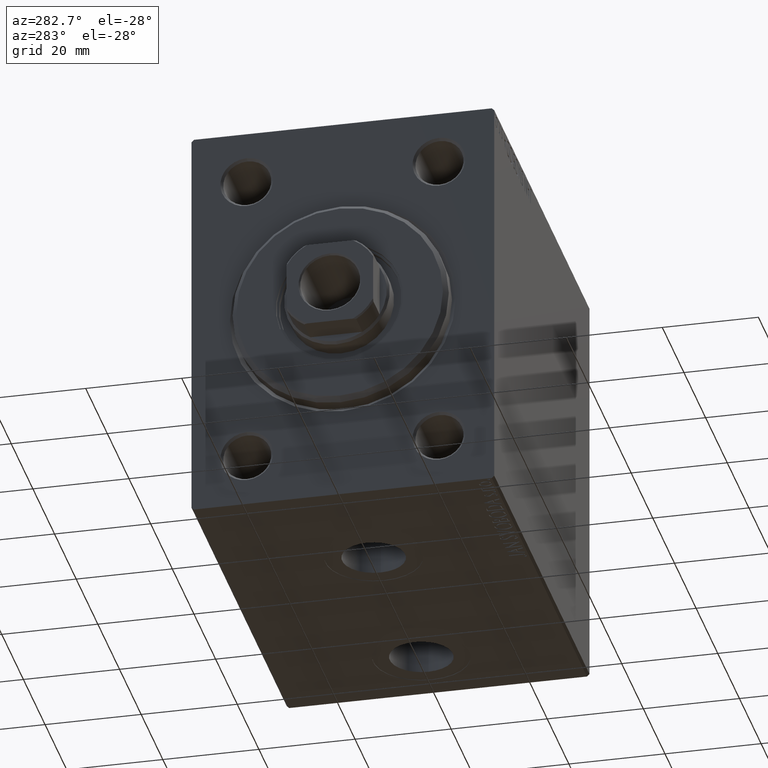
[diagram: clean part render]
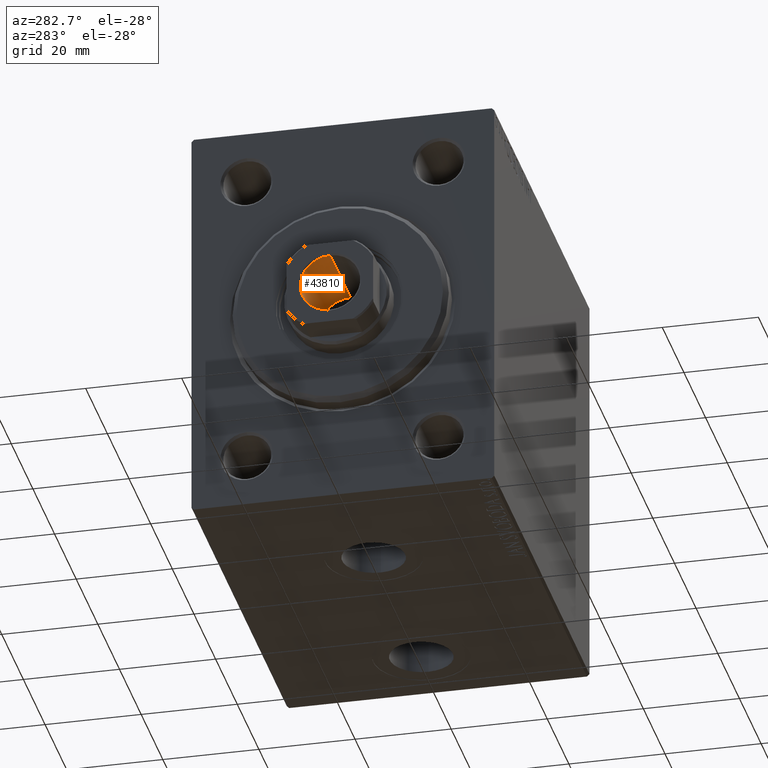
[diagram: same view with one face highlighted and labeled with its STEP entity id]
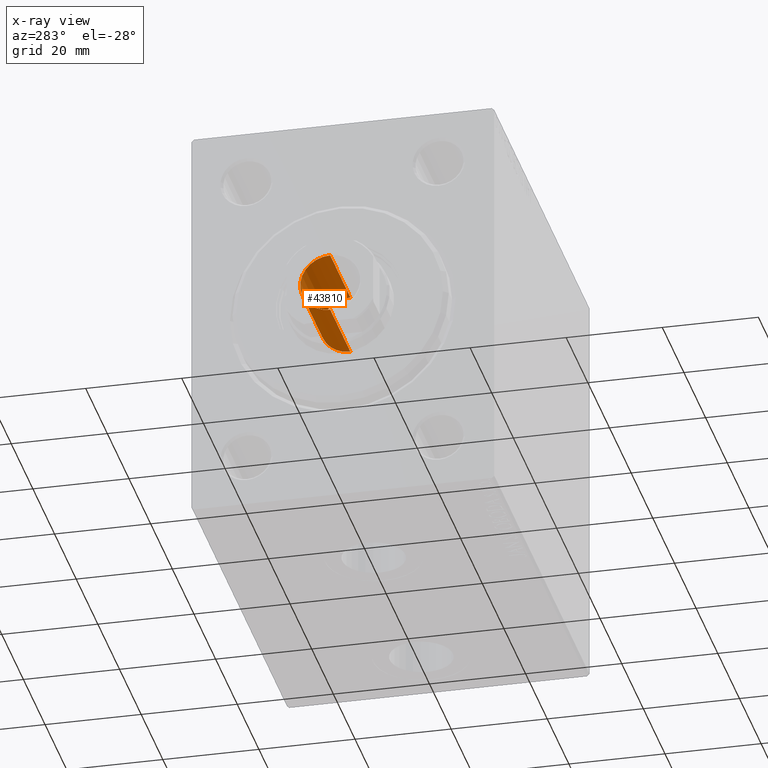
[diagram: x-ray of the same camera — body ghosted, the highlighted face saturated]
A machine part, auxiliary view. The second image highlights one B-rep face of the part: STEP entity #43810.
The next image is the same camera in x-ray: the body ghosted, the highlighted face saturated — about 0% of this face is hidden behind the body in this view.
In plain terms, the highlighted cylindrical surface (edge-blend (fillet) strip) has radius 6.25 mm, axis along (-1, 0, 0).
Its self-contained STEP definition (entity closure, byte-faithful):
#17 = CARTESIAN_POINT ( 'NONE',  ( 6.249999999999996447, 0.000000000000000000, 87.69999999999998863 ) ) ;
#1352 = DIRECTION ( 'NONE',  ( -0.000000000000000000, -0.000000000000000000, 1.000000000000000000 ) ) ;
#2499 = EDGE_CURVE ( 'NONE', #16039, #17037, #45343, .T. ) ;
#4486 = AXIS2_PLACEMENT_3D ( 'NONE', #23087, #37134, #19846 ) ;
#5981 = CARTESIAN_POINT ( 'NONE',  ( 0.000000000000000000, 0.000000000000000000, 87.69999999999998863 ) ) ;
#6788 = EDGE_CURVE ( 'NONE', #38264, #42650, #29699, .T. ) ;
#8043 = EDGE_CURVE ( 'NONE', #42650, #17037, #36722, .T. ) ;
#10900 = DIRECTION ( 'NONE',  ( -0.000000000000000000, -0.000000000000000000, 1.000000000000000000 ) ) ;
#12214 = ORIENTED_EDGE ( 'NONE', *, *, #2499, .F. ) ;
#14126 = DIRECTION ( 'NONE',  ( 1.000000000000000000, 0.000000000000000000, 0.000000000000000000 ) ) ;
#16039 = VERTEX_POINT ( 'NONE', #44333 ) ;
#17037 = VERTEX_POINT ( 'NONE', #28246 ) ;
#19459 = EDGE_CURVE ( 'NONE', #38264, #16039, #28063, .T. ) ;
#19846 = DIRECTION ( 'NONE',  ( 1.000000000000000000, 0.000000000000000000, 0.000000000000000000 ) ) ;
#20408 = ORIENTED_EDGE ( 'NONE', *, *, #8043, .T. ) ;
#21065 = FACE_OUTER_BOUND ( 'NONE', #44585, .T. ) ;
#23087 = CARTESIAN_POINT ( 'NONE',  ( 0.000000000000000000, 0.000000000000000000, 68.99999999999998579 ) ) ;
#23712 = CARTESIAN_POINT ( 'NONE',  ( -6.249999999999996447, 7.654042494670952676E-16, 88.00000000000000000 ) ) ;
#27143 = AXIS2_PLACEMENT_3D ( 'NONE', #5981, #32226, #42156 ) ;
#27280 = AXIS2_PLACEMENT_3D ( 'NONE', #35795, #10900, #14126 ) ;
#28063 = CIRCLE ( 'NONE', #4486, 6.249999999999995559 ) ;
#28246 = CARTESIAN_POINT ( 'NONE',  ( -6.249999999999996447, 7.654042494670952676E-16, 87.69999999999998863 ) ) ;
#28250 = VECTOR ( 'NONE', #37981, 1000.000000000000000 ) ;
#29699 = LINE ( 'NONE', #36609, #35201 ) ;
#30091 = ORIENTED_EDGE ( 'NONE', *, *, #6788, .T. ) ;
#32226 = DIRECTION ( 'NONE',  ( 0.000000000000000000, 0.000000000000000000, 1.000000000000000000 ) ) ;
#35201 = VECTOR ( 'NONE', #1352, 1000.000000000000000 ) ;
#35337 = CYLINDRICAL_SURFACE ( 'NONE', #27280, 6.249999999999996447 ) ;
#35795 = CARTESIAN_POINT ( 'NONE',  ( 0.000000000000000000, 0.000000000000000000, 88.00000000000000000 ) ) ;
#36609 = CARTESIAN_POINT ( 'NONE',  ( 6.249999999999996447, 0.000000000000000000, 88.00000000000000000 ) ) ;
#36722 = CIRCLE ( 'NONE', #27143, 6.249999999999996447 ) ;
#37134 = DIRECTION ( 'NONE',  ( -0.000000000000000000, -0.000000000000000000, 1.000000000000000000 ) ) ;
#37981 = DIRECTION ( 'NONE',  ( -0.000000000000000000, -0.000000000000000000, 1.000000000000000000 ) ) ;
#38264 = VERTEX_POINT ( 'NONE', #41876 ) ;
#41876 = CARTESIAN_POINT ( 'NONE',  ( 6.249999999999995559, 0.000000000000000000, 68.99999999999998579 ) ) ;
#42156 = DIRECTION ( 'NONE',  ( 1.000000000000000000, 0.000000000000000000, 0.000000000000000000 ) ) ;
#42650 = VERTEX_POINT ( 'NONE', #17 ) ;
#43810 = ADVANCED_FACE ( 'NONE', ( #21065 ), #35337, .F. ) ;
#44333 = CARTESIAN_POINT ( 'NONE',  ( -6.249999999999995559, 7.654042494670950704E-16, 68.99999999999998579 ) ) ;
#44585 = EDGE_LOOP ( 'NONE', ( #12214, #44883, #30091, #20408 ) ) ;
#44883 = ORIENTED_EDGE ( 'NONE', *, *, #19459, .F. ) ;
#45343 = LINE ( 'NONE', #23712, #28250 ) ;